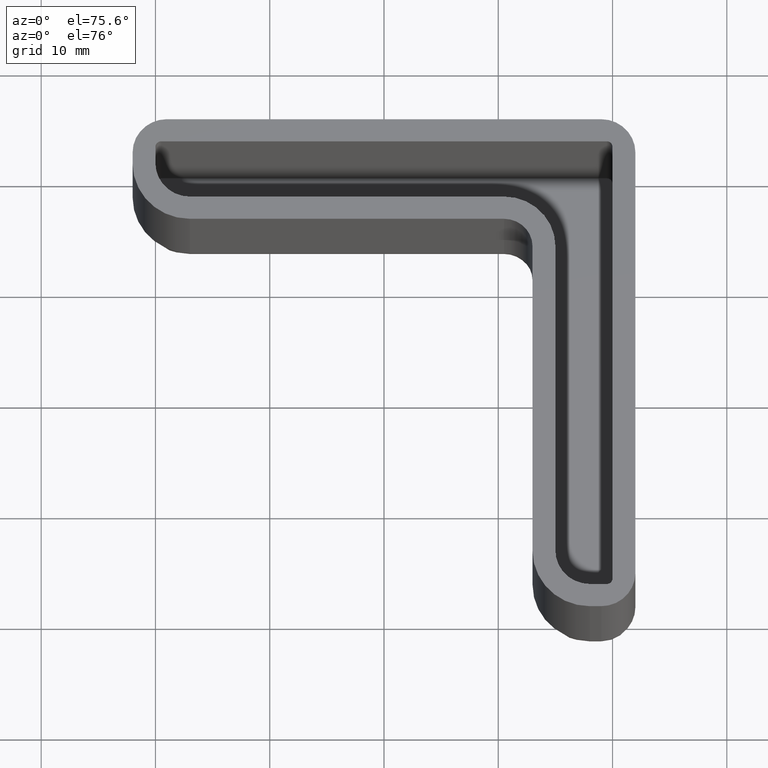
[diagram: clean part render]
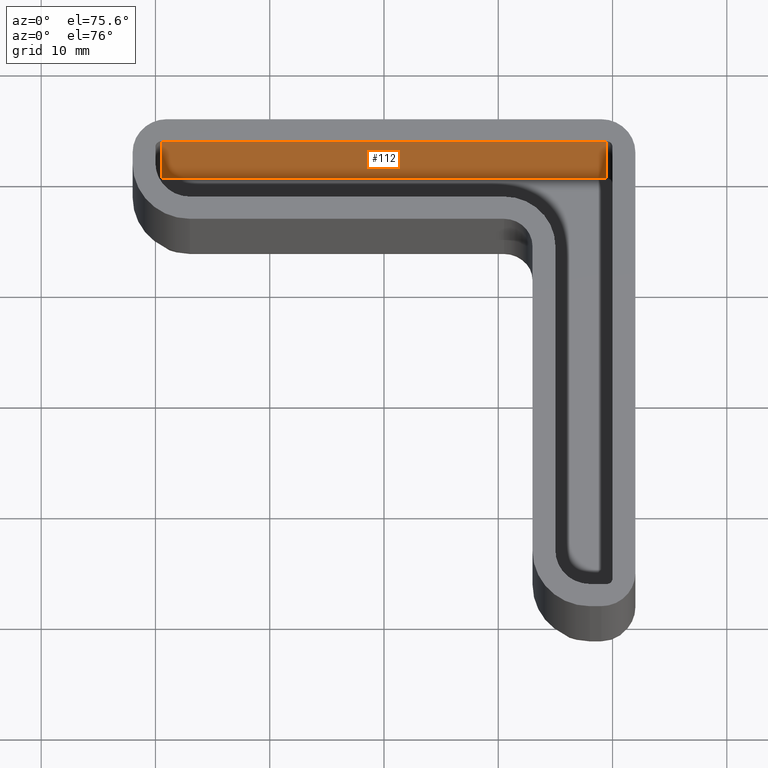
[diagram: same view with one face highlighted and labeled with its STEP entity id]
A machine part, auxiliary view. The second image highlights one B-rep face of the part: STEP entity #112.
In plain terms, the highlighted planar face has unit normal (-0, -1, 0).
Its self-contained STEP definition (entity closure, byte-faithful):
#112 = ADVANCED_FACE( '', ( #190 ), #191, .T. );
#190 = FACE_OUTER_BOUND( '', #313, .T. );
#191 = PLANE( '', #314 );
#313 = EDGE_LOOP( '', ( #600, #601, #602, #603 ) );
#314 = AXIS2_PLACEMENT_3D( '', #604, #605, #606 );
#600 = ORIENTED_EDGE( '', *, *, #705, .T. );
#601 = ORIENTED_EDGE( '', *, *, #647, .F. );
#602 = ORIENTED_EDGE( '', *, *, #706, .F. );
#603 = ORIENTED_EDGE( '', *, *, #636, .F. );
#604 = CARTESIAN_POINT( '', ( -0.500000000000000, 6.12303176911189E-017, 20.0000000000000 ) );
#605 = DIRECTION( '', ( -1.22460635382238E-016, -1.00000000000000, 0.000000000000000 ) );
#606 = DIRECTION( '', ( 1.00000000000000, -1.22460635382238E-016, 0.000000000000000 ) );
#636 = EDGE_CURVE( '', #750, #752, #753, .T. );
#647 = EDGE_CURVE( '', #768, #770, #771, .T. );
#705 = EDGE_CURVE( '', #750, #770, #855, .T. );
#706 = EDGE_CURVE( '', #752, #768, #856, .T. );
#750 = VERTEX_POINT( '', #911 );
#752 = VERTEX_POINT( '', #913 );
#753 = LINE( '', #914, #915 );
#768 = VERTEX_POINT( '', #936 );
#770 = VERTEX_POINT( '', #938 );
#771 = LINE( '', #939, #940 );
#855 = LINE( '', #1057, #1058 );
#856 = LINE( '', #1059, #1060 );
#911 = CARTESIAN_POINT( '', ( -39.5000000000000, 4.83719509759839E-015, 0.000000000000000 ) );
#913 = CARTESIAN_POINT( '', ( -0.500000000000000, 6.12303176911189E-017, 0.000000000000000 ) );
#914 = CARTESIAN_POINT( '', ( -0.999999999999998, 1.22460635382238E-016, 0.000000000000000 ) );
#915 = VECTOR( '', #1105, 1000.00000000000 );
#936 = CARTESIAN_POINT( '', ( -0.500000000000000, 6.12303176911189E-017, -13.0000000000000 ) );
#938 = CARTESIAN_POINT( '', ( -39.5000000000000, 4.83719509759839E-015, -13.0000000000000 ) );
#939 = CARTESIAN_POINT( '', ( -0.500000000000000, 6.12303176911189E-017, -13.0000000000000 ) );
#940 = VECTOR( '', #1124, 1000.00000000000 );
#1057 = CARTESIAN_POINT( '', ( -39.5000000000000, 4.83719509759839E-015, 20.0000000000000 ) );
#1058 = VECTOR( '', #1230, 1000.00000000000 );
#1059 = CARTESIAN_POINT( '', ( -0.500000000000000, 6.12303176911189E-017, 20.0000000000000 ) );
#1060 = VECTOR( '', #1231, 1000.00000000000 );
#1105 = DIRECTION( '', ( 1.00000000000000, -1.22460635382238E-016, 0.000000000000000 ) );
#1124 = DIRECTION( '', ( -1.00000000000000, 1.22460635382238E-016, 0.000000000000000 ) );
#1230 = DIRECTION( '', ( 0.000000000000000, 0.000000000000000, -1.00000000000000 ) );
#1231 = DIRECTION( '', ( 0.000000000000000, 0.000000000000000, -1.00000000000000 ) );